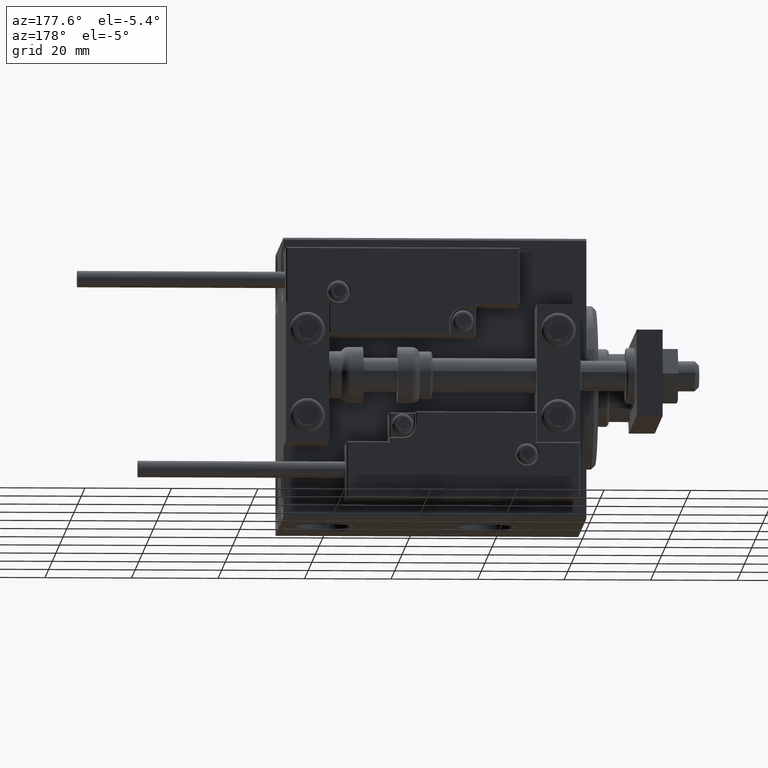
[diagram: clean part render]
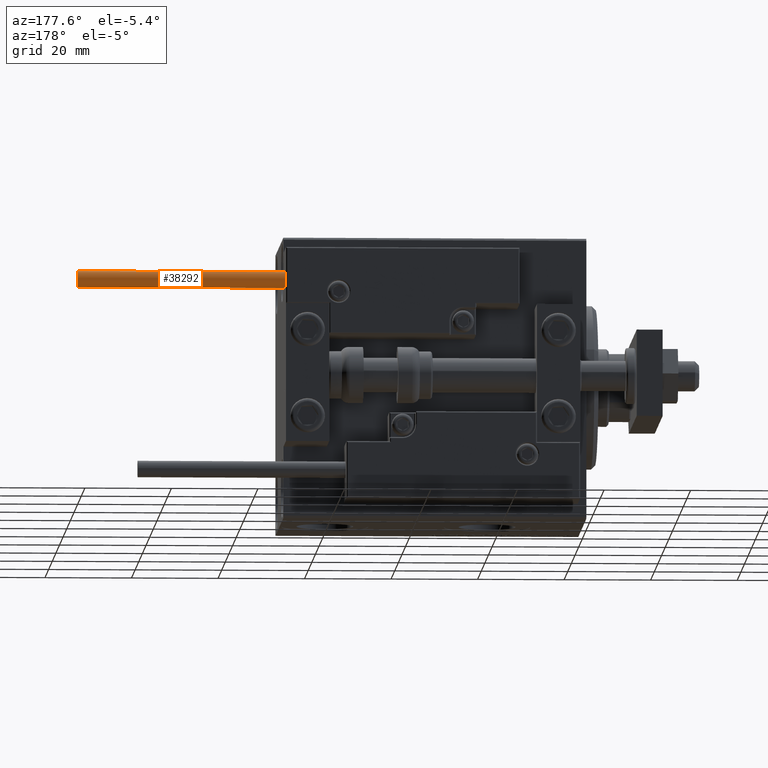
[diagram: same view with one face highlighted and labeled with its STEP entity id]
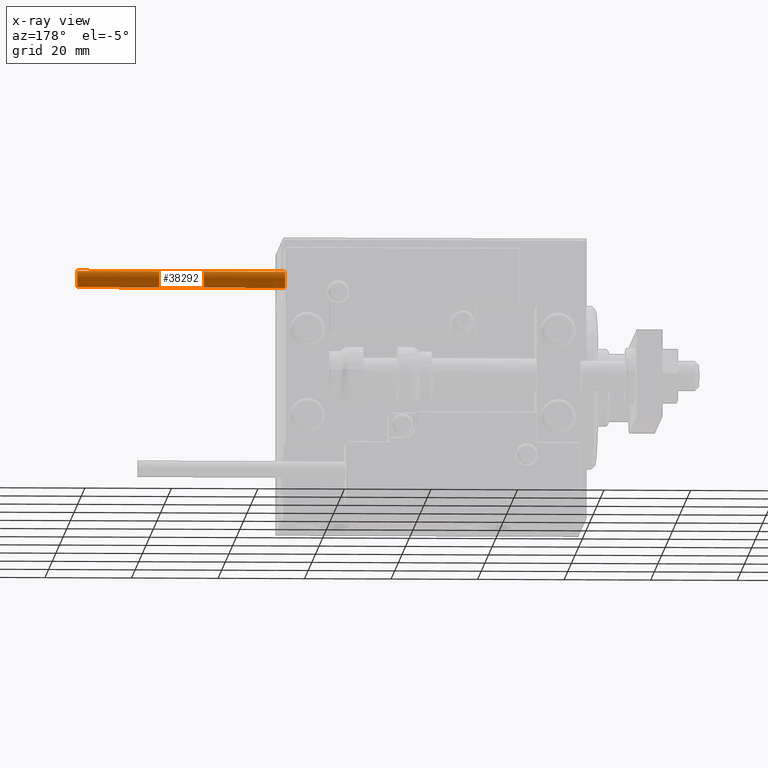
[diagram: x-ray of the same camera — body ghosted, the highlighted face saturated]
A machine part, auxiliary view. The second image highlights one B-rep face of the part: STEP entity #38292.
The next image is the same camera in x-ray: the body ghosted, the highlighted face saturated — about 0% of this face is hidden behind the body in this view.
In plain terms, the highlighted cylindrical surface (edge-blend (fillet) strip) has radius 1.9 mm, axis along (-1, -0, 0).
Its self-contained STEP definition (entity closure, byte-faithful):
#679 = ORIENTED_EDGE ( 'NONE', *, *, #26188, .T. ) ;
#727 = DIRECTION ( 'NONE',  ( -0.000000000000000000, -0.000000000000000000, -1.000000000000000000 ) ) ;
#2939 = EDGE_CURVE ( 'NONE', #23343, #5062, #45606, .T. ) ;
#3086 = CARTESIAN_POINT ( 'NONE',  ( 0.000000000000000000, 0.000000000000000000, 0.000000000000000000 ) ) ;
#4184 = ORIENTED_EDGE ( 'NONE', *, *, #8718, .T. ) ;
#5062 = VERTEX_POINT ( 'NONE', #39715 ) ;
#7099 = DIRECTION ( 'NONE',  ( 1.000000000000000000, 0.000000000000000000, 0.000000000000000000 ) ) ;
#7648 = DIRECTION ( 'NONE',  ( -0.000000000000000000, -0.000000000000000000, -1.000000000000000000 ) ) ;
#7921 = CIRCLE ( 'NONE', #36394, 1.899999999999999467 ) ;
#8718 = EDGE_CURVE ( 'NONE', #23535, #20974, #27972, .T. ) ;
#10332 = FACE_OUTER_BOUND ( 'NONE', #19098, .T. ) ;
#17954 = AXIS2_PLACEMENT_3D ( 'NONE', #3086, #22668, #37948 ) ;
#17985 = CARTESIAN_POINT ( 'NONE',  ( -1.899999999999999467, 0.000000000000000000, 48.00000000000000000 ) ) ;
#18684 = AXIS2_PLACEMENT_3D ( 'NONE', #45491, #25889, #41412 ) ;
#19098 = EDGE_LOOP ( 'NONE', ( #37120, #4184, #679, #19721 ) ) ;
#19721 = ORIENTED_EDGE ( 'NONE', *, *, #2939, .F. ) ;
#20974 = VERTEX_POINT ( 'NONE', #29927 ) ;
#21060 = CYLINDRICAL_SURFACE ( 'NONE', #18684, 1.899999999999999467 ) ;
#22179 = CARTESIAN_POINT ( 'NONE',  ( 1.899999999999999467, 2.326828918379970872E-16, 48.00000000000000000 ) ) ;
#22668 = DIRECTION ( 'NONE',  ( 0.000000000000000000, 0.000000000000000000, 1.000000000000000000 ) ) ;
#23343 = VERTEX_POINT ( 'NONE', #17985 ) ;
#23535 = VERTEX_POINT ( 'NONE', #22179 ) ;
#25889 = DIRECTION ( 'NONE',  ( -0.000000000000000000, -0.000000000000000000, -1.000000000000000000 ) ) ;
#26188 = EDGE_CURVE ( 'NONE', #20974, #5062, #35052, .T. ) ;
#27972 = LINE ( 'NONE', #31289, #48387 ) ;
#29927 = CARTESIAN_POINT ( 'NONE',  ( 1.899999999999999467, 2.326828918379970872E-16, 0.000000000000000000 ) ) ;
#30829 = CARTESIAN_POINT ( 'NONE',  ( -1.899999999999999467, 0.000000000000000000, 48.00000000000000000 ) ) ;
#31289 = CARTESIAN_POINT ( 'NONE',  ( 1.899999999999999467, 2.326828918379970872E-16, 48.00000000000000000 ) ) ;
#32978 = EDGE_CURVE ( 'NONE', #23535, #23343, #7921, .T. ) ;
#35052 = CIRCLE ( 'NONE', #17954, 1.899999999999999467 ) ;
#36307 = VECTOR ( 'NONE', #7648, 1000.000000000000000 ) ;
#36394 = AXIS2_PLACEMENT_3D ( 'NONE', #45802, #41983, #7099 ) ;
#37120 = ORIENTED_EDGE ( 'NONE', *, *, #32978, .F. ) ;
#37948 = DIRECTION ( 'NONE',  ( 1.000000000000000000, 0.000000000000000000, 0.000000000000000000 ) ) ;
#38292 = ADVANCED_FACE ( 'NONE', ( #10332 ), #21060, .T. ) ;
#39715 = CARTESIAN_POINT ( 'NONE',  ( -1.899999999999999467, 0.000000000000000000, 0.000000000000000000 ) ) ;
#41412 = DIRECTION ( 'NONE',  ( -1.000000000000000000, 0.000000000000000000, 0.000000000000000000 ) ) ;
#41983 = DIRECTION ( 'NONE',  ( 0.000000000000000000, 0.000000000000000000, 1.000000000000000000 ) ) ;
#45491 = CARTESIAN_POINT ( 'NONE',  ( 0.000000000000000000, 0.000000000000000000, 48.00000000000000000 ) ) ;
#45606 = LINE ( 'NONE', #30829, #36307 ) ;
#45802 = CARTESIAN_POINT ( 'NONE',  ( 0.000000000000000000, 0.000000000000000000, 48.00000000000000000 ) ) ;
#48387 = VECTOR ( 'NONE', #727, 1000.000000000000000 ) ;